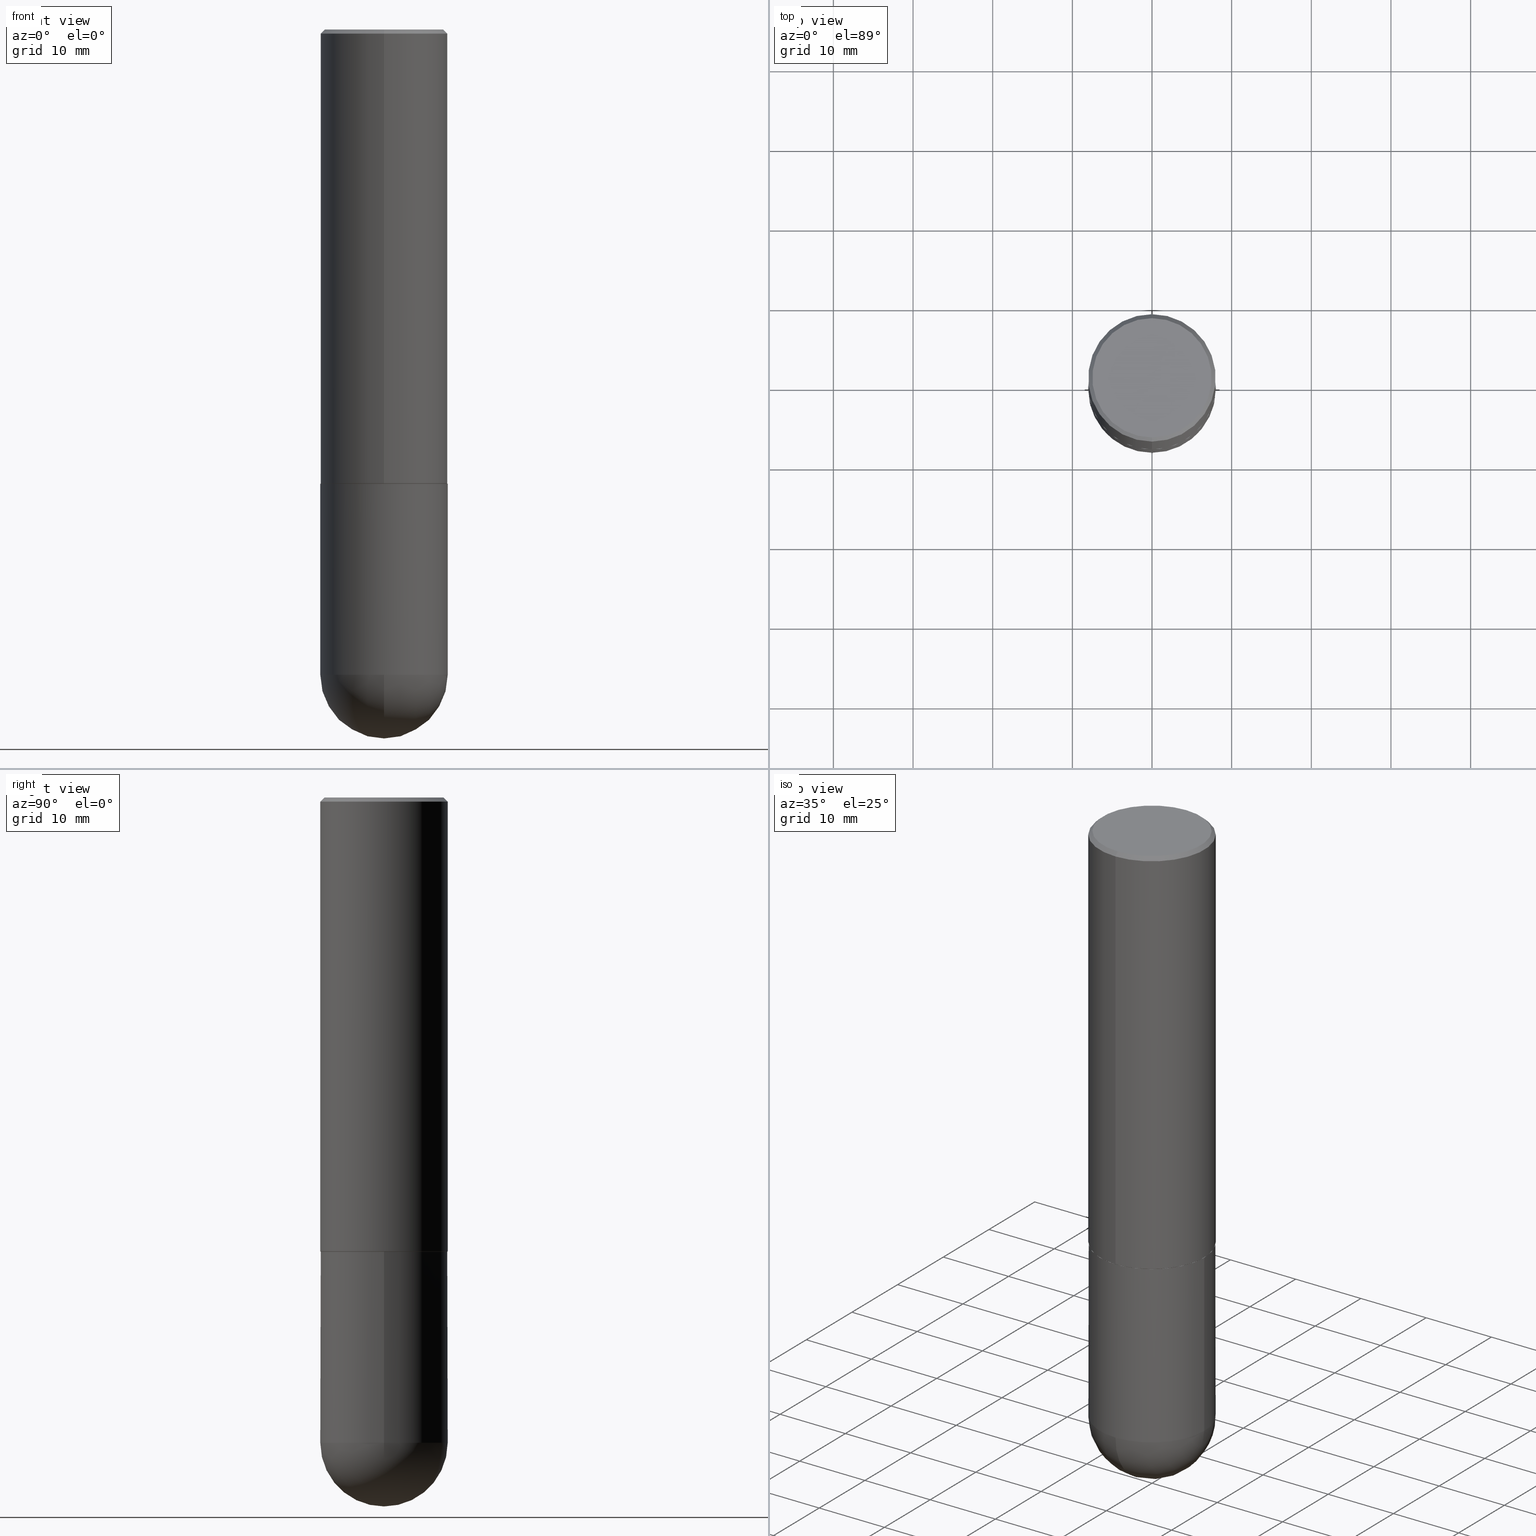
[diagram: canonical four-view strip — front | top / right | iso, engineering-drawing reading convention]
A machine part, canonical four-view strip (front | top / right | iso — engineering-drawing reading convention). The complete STEP part file that produces these views, byte-faithful:
ISO-10303-21;
HEADER;
FILE_DESCRIPTION (( 'STEP AP203' ),
    '1' );
FILE_NAME ('48859.STEP',
    '2024-04-10T12:06:19',
    ( '' ),
    ( '' ),
    'SwSTEP 2.0',
    'SolidWorks 2023',
    '' );
FILE_SCHEMA (( 'CONFIG_CONTROL_DESIGN' ));
ENDSEC;

DATA;
#1 = DIRECTION ( 'NONE',  ( -2.445468806185136877E-29, 3.491481338843145188E-15, 1.000000000000000000 ) ) ;
#2 = PRODUCT_DEFINITION_SHAPE ( 'NONE', 'NONE',  #344 ) ;
#3 = ADVANCED_FACE ( 'NONE', ( #306 ), #31, .T. ) ;
#4 = VECTOR ( 'NONE', #254, 39.37007874015748143 ) ;
#5 = MANIFOLD_SOLID_BREP ( 'Body-Move/Copy2[2]', #282 ) ;
#6 = ORIENTED_EDGE ( 'NONE', *, *, #67, .T. ) ;
#7 = ORIENTED_EDGE ( 'NONE', *, *, #166, .T. ) ;
#8 = APPLICATION_CONTEXT ( 'configuration controlled 3d designs of mechanical parts and assemblies' ) ;
#9 = EDGE_CURVE ( 'NONE', #137, #391, #333, .T. ) ;
#10 = CONICAL_SURFACE ( 'NONE', #407, 0.3139500000000000624, 0.7853981633975165577 ) ;
#11 = AXIS2_PLACEMENT_3D ( 'NONE', #77, #204, #334 ) ;
#12 = EDGE_LOOP ( 'NONE', ( #174, #102, #227, #360 ) ) ;
#13 = CYLINDRICAL_SURFACE ( 'NONE', #11, 0.3149500000000000077 ) ;
#14 = LINE ( 'NONE', #93, #4 ) ;
#15 = EDGE_LOOP ( 'NONE', ( #246, #6, #106, #256 ) ) ;
#16 = LINE ( 'NONE', #339, #396 ) ;
#17 = ADVANCED_FACE ( 'NONE', ( #276 ), #205, .T. ) ;
#18 = CIRCLE ( 'NONE', #379, 0.3149500000000002853 ) ;
#19 = DIRECTION ( 'NONE',  ( -6.982962677686266711E-15, -1.000000000000000000, 3.480615376543096131E-15 ) ) ;
#20 = LOCAL_TIME ( 8, 6, 19.00000000000000000, #370 ) ;
#21 = CARTESIAN_POINT ( 'NONE',  ( 7.798477749484091354E-29, -1.113415941550384898E-14, -3.188949999999999729 ) ) ;
#22 = CARTESIAN_POINT ( 'NONE',  ( 5.485885888258796113E-29, -7.831090478634690748E-15, -2.243099999999999650 ) ) ;
#23 = VERTEX_POINT ( 'NONE', #142 ) ;
#24 = EDGE_LOOP ( 'NONE', ( #85, #226, #255, #154 ) ) ;
#25 = CIRCLE ( 'NONE', #316, 0.3149500000000000077 ) ;
#26 = VECTOR ( 'NONE', #84, 39.37007874015748143 ) ;
#27 = CIRCLE ( 'NONE', #236, 0.2949499999999998234 ) ;
#28 = COORDINATED_UNIVERSAL_TIME_OFFSET ( 5, 0, .BEHIND. ) ;
#29 = CC_DESIGN_PERSON_AND_ORGANIZATION_ASSIGNMENT ( #404, #268, ( #344 ) ) ;
#30 = PERSON_AND_ORGANIZATION ( #179, #217 ) ;
#31 = CONICAL_SURFACE ( 'NONE', #82, 0.3149500000000000077, 0.7853981633974491672 ) ;
#32 = CARTESIAN_POINT ( 'NONE',  ( 7.798477749484091354E-29, -1.113415941550384898E-14, -3.188949999999999729 ) ) ;
#33 = APPLICATION_PROTOCOL_DEFINITION ( 'international standard', 'config_control_design', 1994, #8 ) ;
#34 = FACE_OUTER_BOUND ( 'NONE', #318, .T. ) ;
#35 = DIRECTION ( 'NONE',  ( 1.000000000000000000, 0.000000000000000000, 0.000000000000000000 ) ) ;
#36 = CARTESIAN_POINT ( 'NONE',  ( 7.467357971570205107E-29, -1.160834178364390085E-14, -3.188949999999999729 ) ) ;
#37 = LOCAL_TIME ( 8, 6, 19.00000000000000000, #264 ) ;
#38 = LOCAL_TIME ( 8, 6, 19.00000000000000000, #233 ) ;
#39 = CARTESIAN_POINT ( 'NONE',  ( 5.488331559824155669E-29, -7.834581669610855006E-15, -2.244099999999999540 ) ) ;
#40 = EDGE_LOOP ( 'NONE', ( #50, #7, #328, #74 ) ) ;
#41 = CYLINDRICAL_SURFACE ( 'NONE', #329, 0.3149500000000001743 ) ;
#42 = ORIENTED_EDGE ( 'NONE', *, *, #399, .T. ) ;
#43 = EDGE_CURVE ( 'NONE', #157, #73, #16, .T. ) ;
#44 = DIRECTION ( 'NONE',  ( -6.982962677686266711E-15, -1.000000000000000000, 3.480615376543096131E-15 ) ) ;
#45 = ORIENTED_EDGE ( 'NONE', *, *, #97, .T. ) ;
#46 = CARTESIAN_POINT ( 'NONE',  ( -2.092108864420427637E-15, -0.2949499999999998234, 1.119279898239787579E-15 ) ) ;
#47 = AXIS2_PLACEMENT_3D ( 'NONE', #22, #369, #57 ) ;
#48 = PERSON_AND_ORGANIZATION_ROLE ( 'design_supplier' ) ;
#49 = CARTESIAN_POINT ( 'NONE',  ( 7.798477749484091354E-29, -1.113415941550384898E-14, -3.188949999999999729 ) ) ;
#50 = ORIENTED_EDGE ( 'NONE', *, *, #375, .F. ) ;
#51 = ADVANCED_FACE ( 'NONE', ( #169 ), #240, .F. ) ;
#52 = PERSON_AND_ORGANIZATION ( #179, #217 ) ;
#53 = FACE_OUTER_BOUND ( 'NONE', #287, .T. ) ;
#54 = DIRECTION ( 'NONE',  ( 1.000000000000000000, -6.982962677686263555E-15, 0.000000000000000000 ) ) ;
#55 = CARTESIAN_POINT ( 'NONE',  ( 5.485885888258796113E-29, -7.831090478634690748E-15, -2.243099999999999650 ) ) ;
#56 = EDGE_CURVE ( 'NONE', #278, #137, #269, .T. ) ;
#57 = DIRECTION ( 'NONE',  ( -6.982962677686265922E-15, -1.000000000000000000, 3.469564049740290009E-15 ) ) ;
#58 = VERTEX_POINT ( 'NONE', #397 ) ;
#59 = DATE_AND_TIME ( #181, #208 ) ;
#60 = VECTOR ( 'NONE', #86, 39.37007874015748143 ) ;
#61 = CC_DESIGN_SECURITY_CLASSIFICATION ( #190, ( #123 ) ) ;
#62 = DIRECTION ( 'NONE',  ( 1.000000000000000000, -6.982962677686263555E-15, 0.000000000000000000 ) ) ;
#63 = ADVANCED_FACE ( 'NONE', ( #140 ), #403, .F. ) ;
#64 = LENGTH_MEASURE_WITH_UNIT ( LENGTH_MEASURE( 0.02539999999999999897 ), #220 );
#65 = DIRECTION ( 'NONE',  ( 2.438088387897960049E-29, -3.491481338843145188E-15, -1.000000000000000000 ) ) ;
#66 = AXIS2_PLACEMENT_3D ( 'NONE', #21, #332, #270 ) ;
#67 = EDGE_CURVE ( 'NONE', #206, #394, #158, .T. ) ;
#68 = DIRECTION ( 'NONE',  ( -2.445671565359902220E-29, 3.491190976164545714E-15, 1.000000000000000000 ) ) ;
#69 = ORIENTED_EDGE ( 'NONE', *, *, #310, .T. ) ;
#70 = CARTESIAN_POINT ( 'NONE',  ( -0.3149500000000000077, 2.237854346276435590E-15, -1.549218606675782676E-29 ) ) ;
#71 = ORIENTED_EDGE ( 'NONE', *, *, #353, .F. ) ;
#72 = EDGE_CURVE ( 'NONE', #358, #23, #25, .T. ) ;
#73 = VERTEX_POINT ( 'NONE', #78 ) ;
#74 = ORIENTED_EDGE ( 'NONE', *, *, #291, .F. ) ;
#75 = CIRCLE ( 'NONE', #309, 0.3149500000000000077 ) ;
#76 = ORIENTED_EDGE ( 'NONE', *, *, #194, .T. ) ;
#77 = CARTESIAN_POINT ( 'NONE',  ( 0.000000000000000000, 0.000000000000000000, 0.000000000000000000 ) ) ;
#78 = CARTESIAN_POINT ( 'NONE',  ( -2.160713844398143363E-15, -0.3149500000000000632, -0.01999999999999896999 ) ) ;
#79 = ORIENTED_EDGE ( 'NONE', *, *, #56, .F. ) ;
#80 = CC_DESIGN_DATE_AND_TIME_ASSIGNMENT ( #211, #366, ( #344 ) ) ;
#81 = DATE_AND_TIME ( #201, #38 ) ;
#82 = AXIS2_PLACEMENT_3D ( 'NONE', #400, #121, #245 ) ;
#83 = EDGE_LOOP ( 'NONE', ( #79, #308 ) ) ;
#84 = DIRECTION ( 'NONE',  ( -4.851104656540968219E-15, -0.7071067811865505703, -0.7071067811865444641 ) ) ;
#85 = ORIENTED_EDGE ( 'NONE', *, *, #166, .F. ) ;
#86 = DIRECTION ( 'NONE',  ( -2.445671565359902220E-29, 3.491190976164546108E-15, 1.000000000000000000 ) ) ;
#87 = DIRECTION ( 'NONE',  ( 1.000000000000000000, -6.982962677686265922E-15, 4.883557194083112340E-29 ) ) ;
#88 = ADVANCED_FACE ( 'NONE', ( #53 ), #10, .T. ) ;
#89 = AXIS2_PLACEMENT_3D ( 'NONE', #307, #184, #35 ) ;
#90 = EDGE_CURVE ( 'NONE', #391, #157, #18, .T. ) ;
#91 = DIRECTION ( 'NONE',  ( -6.982962677686265922E-15, -1.000000000000000000, 3.496670018878889100E-15 ) ) ;
#92 = CYLINDRICAL_SURFACE ( 'NONE', #390, 0.3149500000000001743 ) ;
#93 = CARTESIAN_POINT ( 'NONE',  ( -2.192301132659549031E-15, -0.3139500000000079449, -2.244099999999998651 ) ) ;
#94 = DIRECTION ( 'NONE',  ( 4.937700262164551986E-15, 0.7071067811865456854, -0.7071067811865493491 ) ) ;
#95 = ORIENTED_EDGE ( 'NONE', *, *, #124, .T. ) ;
#96 = LINE ( 'NONE', #321, #133 ) ;
#97 = EDGE_CURVE ( 'NONE', #157, #391, #243, .T. ) ;
#98 = DIRECTION ( 'NONE',  ( -6.982962677686265922E-15, -1.000000000000000000, 3.491190976164545714E-15 ) ) ;
#99 = VERTEX_POINT ( 'NONE', #258 ) ;
#100 = CIRCLE ( 'NONE', #408, 0.2949499999999998234 ) ;
#101 = DIRECTION ( 'NONE',  ( -2.445468806185136877E-29, 3.491481338843145188E-15, 1.000000000000000000 ) ) ;
#102 = ORIENTED_EDGE ( 'NONE', *, *, #186, .T. ) ;
#103 = ORIENTED_EDGE ( 'NONE', *, *, #182, .T. ) ;
#104 = APPROVAL ( #346, 'UNSPECIFIED' ) ;
#105 = CARTESIAN_POINT ( 'NONE',  ( 7.467357971570205107E-29, -1.160834178364390085E-14, -3.188949999999999729 ) ) ;
#106 = ORIENTED_EDGE ( 'NONE', *, *, #337, .F. ) ;
#107 = PERSON_AND_ORGANIZATION ( #179, #217 ) ;
#108 = ADVANCED_FACE ( 'NONE', ( #273 ), #347, .F. ) ;
#109 = DIRECTION ( 'NONE',  ( -2.445468806185136597E-29, 3.491481338843145583E-15, 1.000000000000000000 ) ) ;
#110 = DIRECTION ( 'NONE',  ( -6.982962677686266711E-15, -1.000000000000000000, 3.480615376543096131E-15 ) ) ;
#111 = ORIENTED_EDGE ( 'NONE', *, *, #353, .T. ) ;
#112 = DIRECTION ( 'NONE',  ( -6.982962677686265922E-15, -1.000000000000000000, 3.491190976164545714E-15 ) ) ;
#113 = DIRECTION ( 'NONE',  ( 2.445671565359901659E-29, -3.491190976164546108E-15, -1.000000000000000000 ) ) ;
#114 = ADVANCED_FACE ( 'NONE', ( #212 ), #92, .T. ) ;
#115 = EDGE_CURVE ( 'NONE', #345, #358, #250, .T. ) ;
#116 = CYLINDRICAL_SURFACE ( 'NONE', #294, 0.3149500000000000077 ) ;
#117 = APPROVAL_STATUS ( 'not_yet_approved' ) ;
#118 = DIRECTION ( 'NONE',  ( 6.982962677686264344E-15, 1.000000000000000000, 0.000000000000000000 ) ) ;
#119 = CONICAL_SURFACE ( 'NONE', #313, 0.3139500000000000624, 0.7853981633975165577 ) ;
#120 = CARTESIAN_POINT ( 'NONE',  ( 2.237854346276435985E-15, 0.3149500000000001743, -1.099550597943024265E-15 ) ) ;
#121 = DIRECTION ( 'NONE',  ( 2.445671565359902220E-29, -3.491190976164545714E-15, -1.000000000000000000 ) ) ;
#122 = SHAPE_DEFINITION_REPRESENTATION ( #2, #350 ) ;
#123 = PRODUCT_DEFINITION_FORMATION_WITH_SPECIFIED_SOURCE ( 'ANY', '', #125, .NOT_KNOWN. ) ;
#124 = EDGE_CURVE ( 'NONE', #391, #99, #314, .T. ) ;
#125 = PRODUCT ( '48859', '48859', '', ( #284 ) ) ;
#126 = CARTESIAN_POINT ( 'NONE',  ( 0.000000000000000000, 0.000000000000000000, 0.000000000000000000 ) ) ;
#127 = AXIS2_PLACEMENT_3D ( 'NONE', #105, #234, #395 ) ;
#128 = EDGE_LOOP ( 'NONE', ( #263, #192, #272, #151 ) ) ;
#129 = EDGE_LOOP ( 'NONE', ( #289, #343, #235, #296 ) ) ;
#130 = CARTESIAN_POINT ( 'NONE',  ( -2.192301132659549031E-15, -0.3139500000000079449, -2.244099999999998651 ) ) ;
#131 = ORIENTED_EDGE ( 'NONE', *, *, #56, .T. ) ;
#132 = AXIS2_PLACEMENT_3D ( 'NONE', #213, #367, #377 ) ;
#133 = VECTOR ( 'NONE', #94, 39.37007874015748143 ) ;
#134 = CARTESIAN_POINT ( 'NONE',  ( 5.488331559824155669E-29, -7.834581669610855006E-15, -2.244099999999999540 ) ) ;
#135 = ORIENTED_EDGE ( 'NONE', *, *, #9, .T. ) ;
#136 = DIRECTION ( 'NONE',  ( -2.445671565359902220E-29, 3.491190976164545714E-15, 1.000000000000000000 ) ) ;
#137 = VERTEX_POINT ( 'NONE', #305 ) ;
#138 = DIRECTION ( 'NONE',  ( -2.445671565359902220E-29, 3.491190976164546108E-15, 1.000000000000000000 ) ) ;
#139 = CIRCLE ( 'NONE', #380, 0.3149500000000000077 ) ;
#140 = FACE_OUTER_BOUND ( 'NONE', #262, .T. ) ;
#141 = CARTESIAN_POINT ( 'NONE',  ( 0.3149500000000000077, -1.168398043933816632E-14, -3.188949999999999729 ) ) ;
#142 = CARTESIAN_POINT ( 'NONE',  ( -0.3149500000000000077, -7.246841997724440463E-15, -2.244099999999999540 ) ) ;
#143 = DIRECTION ( 'NONE',  ( -2.445468806185136597E-29, 3.491481338843145583E-15, 1.000000000000000000 ) ) ;
#144 = CARTESIAN_POINT ( 'NONE',  ( 2.230748918918889408E-15, 0.3139499999999922353, -2.244100000000000872 ) ) ;
#145 = CIRCLE ( 'NONE', #372, 0.3149500000000000077 ) ;
#146 = CALENDAR_DATE ( 2024, 10, 4 ) ;
#147 = ADVANCED_FACE ( 'NONE', ( #34 ), #116, .T. ) ;
#148 = CARTESIAN_POINT ( 'NONE',  ( 0.000000000000000000, 0.000000000000000000, 0.000000000000000000 ) ) ;
#149 = CARTESIAN_POINT ( 'NONE',  ( 0.000000000000000000, 0.000000000000000000, 0.000000000000000000 ) ) ;
#150 = DIRECTION ( 'NONE',  ( -2.445671565359902220E-29, 3.491190976164545714E-15, 1.000000000000000000 ) ) ;
#151 = ORIENTED_EDGE ( 'NONE', *, *, #310, .F. ) ;
#152 = ORIENTED_EDGE ( 'NONE', *, *, #375, .T. ) ;
#153 = DIRECTION ( 'NONE',  ( -6.982962677686264344E-15, -1.000000000000000000, 3.491190976164545714E-15 ) ) ;
#154 = ORIENTED_EDGE ( 'NONE', *, *, #196, .T. ) ;
#155 = DIRECTION ( 'NONE',  ( -2.445468806185136597E-29, 3.491481338843145583E-15, 1.000000000000000000 ) ) ;
#156 = LINE ( 'NONE', #70, #253 ) ;
#157 = VERTEX_POINT ( 'NONE', #277 ) ;
#158 = CIRCLE ( 'NONE', #371, 0.3149500000000001743 ) ;
#159 = DATE_AND_TIME ( #401, #37 ) ;
#160 = PERSON_AND_ORGANIZATION_ROLE ( 'creator' ) ;
#161 = CARTESIAN_POINT ( 'NONE',  ( 0.3149500000000000077, -1.003451736783519063E-14, -2.244099999999999540 ) ) ;
#162 = CARTESIAN_POINT ( 'NONE',  ( 5.487876547960064752E-29, -7.835233272497900762E-15, -2.244099999999999540 ) ) ;
#163 = APPROVAL_ROLE ( '' ) ;
#164 = CARTESIAN_POINT ( 'NONE',  ( -0.3149500000000000077, -7.246841997724442041E-15, -3.188949999999999729 ) ) ;
#165 = CARTESIAN_POINT ( 'NONE',  ( 5.488331559824155669E-29, -7.834581669610855006E-15, -2.244099999999999540 ) ) ;
#166 = EDGE_CURVE ( 'NONE', #362, #73, #405, .T. ) ;
#167 = AXIS2_PLACEMENT_3D ( 'NONE', #406, #113, #335 ) ;
#168 = AXIS2_PLACEMENT_3D ( 'NONE', #134, #228, #288 ) ;
#169 = FACE_OUTER_BOUND ( 'NONE', #83, .T. ) ;
#170 = APPROVAL_STATUS ( 'not_yet_approved' ) ;
#171 = DIRECTION ( 'NONE',  ( -6.982962677686264344E-15, -1.000000000000000000, 3.491190976164545714E-15 ) ) ;
#172 = ORIENTED_EDGE ( 'NONE', *, *, #43, .F. ) ;
#173 = CARTESIAN_POINT ( 'NONE',  ( 4.891343130719822166E-31, -6.982381952329116622E-17, -0.02000000000000007327 ) ) ;
#174 = ORIENTED_EDGE ( 'NONE', *, *, #9, .F. ) ;
#175 = DIRECTION ( 'NONE',  ( -2.445671565359902220E-29, 3.491190976164545714E-15, 1.000000000000000000 ) ) ;
#176 = APPLICATION_PROTOCOL_DEFINITION ( 'international standard', 'config_control_design', 1994, #193 ) ;
#177 = ADVANCED_FACE ( 'NONE', ( #341 ), #283, .T. ) ;
#178 = DATE_TIME_ROLE ( 'classification_date' ) ;
#179 = PERSON ( 'UNSPECIFIED', 'UNSPECIFIED', 'UNSPECIFIED', ('UNSPECIFIED'), ('UNSPECIFIED'), ('UNSPECIFIED') ) ;
#180 =( NAMED_UNIT ( * ) PLANE_ANGLE_UNIT ( ) SI_UNIT ( $, .RADIAN. ) );
#181 = CALENDAR_DATE ( 2024, 10, 4 ) ;
#182 = EDGE_CURVE ( 'NONE', #331, #23, #156, .T. ) ;
#183 = CARTESIAN_POINT ( 'NONE',  ( 4.891343130719822166E-31, -6.982381952329116622E-17, -0.02000000000000007327 ) ) ;
#184 = DIRECTION ( 'NONE',  ( 0.000000000000000000, 0.000000000000000000, 1.000000000000000000 ) ) ;
#185 = CIRCLE ( 'NONE', #303, 0.3149500000000001743 ) ;
#186 = EDGE_CURVE ( 'NONE', #137, #278, #197, .T. ) ;
#187 = FACE_OUTER_BOUND ( 'NONE', #12, .T. ) ;
#188 = ORIENTED_EDGE ( 'NONE', *, *, #72, .F. ) ;
#189 = APPROVAL_PERSON_ORGANIZATION ( #52, #224, #163 ) ;
#190 = SECURITY_CLASSIFICATION ( '', '', #218 ) ;
#191 = FACE_OUTER_BOUND ( 'NONE', #129, .T. ) ;
#192 = ORIENTED_EDGE ( 'NONE', *, *, #275, .T. ) ;
#193 = APPLICATION_CONTEXT ( 'configuration controlled 3d designs of mechanical parts and assemblies' ) ;
#194 = EDGE_CURVE ( 'NONE', #229, #362, #100, .T. ) ;
#195 = DIRECTION ( 'NONE',  ( -2.445671565359902220E-29, 3.491190976164545714E-15, 1.000000000000000000 ) ) ;
#196 = EDGE_CURVE ( 'NONE', #99, #73, #207, .T. ) ;
#197 = CIRCLE ( 'NONE', #168, 0.3139500000000000624 ) ;
#198 = AXIS2_PLACEMENT_3D ( 'NONE', #49, #155, #54 ) ;
#199 = FACE_OUTER_BOUND ( 'NONE', #232, .T. ) ;
#200 = ORIENTED_EDGE ( 'NONE', *, *, #97, .F. ) ;
#201 = CALENDAR_DATE ( 2024, 10, 4 ) ;
#202 = ORIENTED_EDGE ( 'NONE', *, *, #182, .F. ) ;
#203 = APPROVAL_ROLE ( '' ) ;
#204 = DIRECTION ( 'NONE',  ( -2.445468806185136597E-29, 3.491481338843145583E-15, 1.000000000000000000 ) ) ;
#205 = SPHERICAL_SURFACE ( 'NONE', #312, 0.3149500000000001743 ) ;
#206 = VERTEX_POINT ( 'NONE', #356 ) ;
#207 = CIRCLE ( 'NONE', #338, 0.3149500000000000077 ) ;
#208 = LOCAL_TIME ( 8, 6, 19.00000000000000000, #410 ) ;
#209 = CARTESIAN_POINT ( 'NONE',  ( 2.129454468560426573E-15, 0.2949499999999998234, -9.401736585996766211E-16 ) ) ;
#210 = DIRECTION ( 'NONE',  ( 6.982962677686265133E-15, 1.000000000000000000, -3.469564049740291586E-15 ) ) ;
#211 = DATE_AND_TIME ( #340, #20 ) ;
#212 = FACE_OUTER_BOUND ( 'NONE', #261, .T. ) ;
#213 = CARTESIAN_POINT ( 'NONE',  ( 5.488331559824155669E-29, -7.834581669610855006E-15, -2.244099999999999540 ) ) ;
#214 = PERSON_AND_ORGANIZATION_ROLE ( 'classification_officer' ) ;
#215 = ADVANCED_FACE ( 'NONE', ( #187 ), #119, .T. ) ;
#216 = CARTESIAN_POINT ( 'NONE',  ( 5.488331559824155669E-29, -7.834581669610855006E-15, -2.244099999999999540 ) ) ;
#217 = ORGANIZATION ( 'UNSPECIFIED', 'UNSPECIFIED', '' ) ;
#218 = SECURITY_CLASSIFICATION_LEVEL ( 'unclassified' ) ;
#219 = PRODUCT_RELATED_PRODUCT_CATEGORY ( 'detail', '', ( #125 ) ) ;
#220 =( LENGTH_UNIT ( ) NAMED_UNIT ( * ) SI_UNIT ( $, .METRE. ) );
#221 = PERSON_AND_ORGANIZATION_ROLE ( 'design_owner' ) ;
#222 = VECTOR ( 'NONE', #409, 39.37007874015748143 ) ;
#223 = VECTOR ( 'NONE', #1, 39.37007874015748143 ) ;
#224 = APPROVAL ( #170, 'UNSPECIFIED' ) ;
#225 = CARTESIAN_POINT ( 'NONE',  ( -2.190175187331782360E-45, 3.126470438031604154E-31, 8.955311982005558999E-17 ) ) ;
#226 = ORIENTED_EDGE ( 'NONE', *, *, #194, .F. ) ;
#227 = ORIENTED_EDGE ( 'NONE', *, *, #260, .T. ) ;
#228 = DIRECTION ( 'NONE',  ( -2.445671565359902220E-29, 3.491190976164545714E-15, 1.000000000000000000 ) ) ;
#229 = VERTEX_POINT ( 'NONE', #209 ) ;
#230 = CC_DESIGN_APPROVAL ( #251, ( #123 ) ) ;
#231 = DIRECTION ( 'NONE',  ( -6.982962677686265922E-15, -1.000000000000000000, 3.496670018878889100E-15 ) ) ;
#232 = EDGE_LOOP ( 'NONE', ( #69, #103, #188, #355, #387 ) ) ;
#233 = COORDINATED_UNIVERSAL_TIME_OFFSET ( 5, 0, .BEHIND. ) ;
#234 = DIRECTION ( 'NONE',  ( -1.000000000000000000, 6.982962677686265133E-15, -4.883557194083112901E-29 ) ) ;
#235 = ORIENTED_EDGE ( 'NONE', *, *, #43, .T. ) ;
#236 = AXIS2_PLACEMENT_3D ( 'NONE', #274, #136, #112 ) ;
#237 = APPROVAL_PERSON_ORGANIZATION ( #30, #104, #247 ) ;
#238 = CARTESIAN_POINT ( 'NONE',  ( 2.237854346276464384E-15, 0.3149499999999924027, -2.243100000000000538 ) ) ;
#239 = DIRECTION ( 'NONE',  ( 1.000000000000000000, -6.982962677686266711E-15, 0.000000000000000000 ) ) ;
#240 = PLANE ( 'NONE',  #132 ) ;
#241 = DIRECTION ( 'NONE',  ( -2.445671565359902220E-29, 3.491190976164545714E-15, 1.000000000000000000 ) ) ;
#242 = CARTESIAN_POINT ( 'NONE',  ( -2.160713844398143363E-15, -0.3149500000000000632, -0.01999999999999896999 ) ) ;
#243 = CIRCLE ( 'NONE', #47, 0.3149500000000002853 ) ;
#244 = CIRCLE ( 'NONE', #66, 0.3149500000000000077 ) ;
#245 = DIRECTION ( 'NONE',  ( 6.982962677686265922E-15, 1.000000000000000000, -3.496670018878889100E-15 ) ) ;
#246 = ORIENTED_EDGE ( 'NONE', *, *, #275, .F. ) ;
#247 = APPROVAL_ROLE ( '' ) ;
#248 = DATE_AND_TIME ( #146, #364 ) ;
#249 = CC_DESIGN_PERSON_AND_ORGANIZATION_ASSIGNMENT ( #324, #160, ( #123 ) ) ;
#250 = LINE ( 'NONE', #348, #223 ) ;
#251 = APPROVAL ( #117, 'UNSPECIFIED' ) ;
#252 = AXIS2_PLACEMENT_3D ( 'NONE', #216, #241, #110 ) ;
#253 = VECTOR ( 'NONE', #101, 39.37007874015748143 ) ;
#254 = DIRECTION ( 'NONE',  ( -4.937700262164884886E-15, -0.7071067811865933139, 0.7071067811865017205 ) ) ;
#255 = ORIENTED_EDGE ( 'NONE', *, *, #291, .T. ) ;
#256 = ORIENTED_EDGE ( 'NONE', *, *, #399, .F. ) ;
#257 = DIRECTION ( 'NONE',  ( -7.105427357600999492E-15, -1.000000000000000000, 0.000000000000000000 ) ) ;
#258 = CARTESIAN_POINT ( 'NONE',  ( 2.199284095337289871E-15, 0.3149499999999999522, -0.02000000000000117309 ) ) ;
#259 = ORIENTED_EDGE ( 'NONE', *, *, #326, .T. ) ;
#260 = EDGE_CURVE ( 'NONE', #278, #157, #14, .T. ) ;
#261 = EDGE_LOOP ( 'NONE', ( #45, #95, #389, #172 ) ) ;
#262 = EDGE_LOOP ( 'NONE', ( #76, #152 ) ) ;
#263 = ORIENTED_EDGE ( 'NONE', *, *, #67, .F. ) ;
#264 = COORDINATED_UNIVERSAL_TIME_OFFSET ( 5, 0, .BEHIND. ) ;
#265 = CC_DESIGN_PERSON_AND_ORGANIZATION_ASSIGNMENT ( #330, #48, ( #123 ) ) ;
#266 = SPHERICAL_SURFACE ( 'NONE', #127, 0.3149500000000001743 ) ;
#267 = DIRECTION ( 'NONE',  ( -1.000000000000000000, 6.982962677686265133E-15, -4.883557194083112901E-29 ) ) ;
#268 = PERSON_AND_ORGANIZATION_ROLE ( 'creator' ) ;
#269 = CIRCLE ( 'NONE', #252, 0.3139500000000000624 ) ;
#270 = DIRECTION ( 'NONE',  ( 1.000000000000000000, -6.982962677686263555E-15, 0.000000000000000000 ) ) ;
#271 = DIRECTION ( 'NONE',  ( -2.445671565359902220E-29, 3.491190976164545714E-15, 1.000000000000000000 ) ) ;
#272 = ORIENTED_EDGE ( 'NONE', *, *, #326, .F. ) ;
#273 = FACE_OUTER_BOUND ( 'NONE', #352, .T. ) ;
#274 = CARTESIAN_POINT ( 'NONE',  ( -2.190175187331782360E-45, 3.126470438031604154E-31, 8.955311982005558999E-17 ) ) ;
#275 = EDGE_CURVE ( 'NONE', #206, #58, #185, .T. ) ;
#276 = FACE_OUTER_BOUND ( 'NONE', #15, .T. ) ;
#277 = CARTESIAN_POINT ( 'NONE',  ( -2.199284095337236228E-15, -0.3149500000000081124, -2.243099999999998317 ) ) ;
#278 = VERTEX_POINT ( 'NONE', #130 ) ;
#279 = DIRECTION ( 'NONE',  ( -1.000000000000000000, 6.982962677686265922E-15, -4.876176775795935793E-29 ) ) ;
#280 = ORIENTED_EDGE ( 'NONE', *, *, #115, .T. ) ;
#281 = DIRECTION ( 'NONE',  ( -2.445468806185136597E-29, 3.491481338843145583E-15, 1.000000000000000000 ) ) ;
#282 = CLOSED_SHELL ( 'NONE', ( #88, #114, #3, #177, #297, #215, #51, #63 ) ) ;
#283 = CONICAL_SURFACE ( 'NONE', #349, 0.3149500000000000077, 0.7853981633974491672 ) ;
#284 = MECHANICAL_CONTEXT ( 'NONE', #8, 'mechanical' ) ;
#285 = DIRECTION ( 'NONE',  ( -1.000000000000000000, 7.105427357601001070E-15, -4.926315508542082329E-29 ) ) ;
#286 = AXIS2_PLACEMENT_3D ( 'NONE', #183, #383, #91 ) ;
#287 = EDGE_LOOP ( 'NONE', ( #131, #135, #200, #322 ) ) ;
#288 = DIRECTION ( 'NONE',  ( -6.982962677686266711E-15, -1.000000000000000000, 3.480615376543096131E-15 ) ) ;
#289 = ORIENTED_EDGE ( 'NONE', *, *, #124, .F. ) ;
#290 = MANIFOLD_SOLID_BREP ( 'Body-Move/Copy2[1]', #336 ) ;
#291 = EDGE_CURVE ( 'NONE', #229, #99, #96, .T. ) ;
#292 = ORIENTED_EDGE ( 'NONE', *, *, #72, .T. ) ;
#293 = CARTESIAN_POINT ( 'NONE',  ( 4.891343130719822166E-31, -6.982381952329116622E-17, -0.02000000000000007327 ) ) ;
#294 = AXIS2_PLACEMENT_3D ( 'NONE', #148, #143, #384 ) ;
#295 = FACE_OUTER_BOUND ( 'NONE', #128, .T. ) ;
#296 = ORIENTED_EDGE ( 'NONE', *, *, #196, .F. ) ;
#297 = ADVANCED_FACE ( 'NONE', ( #191 ), #41, .T. ) ;
#298 = APPROVAL_DATE_TIME ( #159, #224 ) ;
#299 = DIRECTION ( 'NONE',  ( -2.445468806185136597E-29, 3.491481338843145583E-15, 1.000000000000000000 ) ) ;
#300 = APPROVAL_DATE_TIME ( #81, #251 ) ;
#301 = CARTESIAN_POINT ( 'NONE',  ( 2.199284095337366390E-15, 0.3149499999999886835, -3.188950000000001062 ) ) ;
#302 = DIRECTION ( 'NONE',  ( -2.445671565359902220E-29, 3.491190976164545714E-15, 1.000000000000000000 ) ) ;
#303 = AXIS2_PLACEMENT_3D ( 'NONE', #36, #285, #257 ) ;
#304 = DIRECTION ( 'NONE',  ( -6.982962677686265922E-15, -1.000000000000000000, 3.469564049740290009E-15 ) ) ;
#305 = CARTESIAN_POINT ( 'NONE',  ( 2.234301632597690701E-15, 0.3139499999999922353, -2.244100000000000872 ) ) ;
#306 = FACE_OUTER_BOUND ( 'NONE', #40, .T. ) ;
#307 = CARTESIAN_POINT ( 'NONE',  ( 0.000000000000000000, 0.000000000000000000, 0.000000000000000000 ) ) ;
#308 = ORIENTED_EDGE ( 'NONE', *, *, #186, .F. ) ;
#309 = AXIS2_PLACEMENT_3D ( 'NONE', #382, #281, #62 ) ;
#310 = EDGE_CURVE ( 'NONE', #394, #331, #145, .T. ) ;
#311 = CC_DESIGN_DATE_AND_TIME_ASSIGNMENT ( #59, #178, ( #190 ) ) ;
#312 = AXIS2_PLACEMENT_3D ( 'NONE', #365, #267, #210 ) ;
#313 = AXIS2_PLACEMENT_3D ( 'NONE', #39, #195, #44 ) ;
#314 = LINE ( 'NONE', #120, #60 ) ;
#315 = DESIGN_CONTEXT ( 'detailed design', #193, 'design' ) ;
#316 = AXIS2_PLACEMENT_3D ( 'NONE', #162, #299, #239 ) ;
#317 = CC_DESIGN_APPROVAL ( #224, ( #344 ) ) ;
#318 = EDGE_LOOP ( 'NONE', ( #202, #259, #42, #280, #71 ) ) ;
#319 = CC_DESIGN_APPROVAL ( #104, ( #190 ) ) ;
#320 = ADVANCED_FACE ( 'NONE', ( #199 ), #13, .T. ) ;
#321 = CARTESIAN_POINT ( 'NONE',  ( 2.199284095337289871E-15, 0.3149499999999999522, -0.02000000000000117309 ) ) ;
#322 = ORIENTED_EDGE ( 'NONE', *, *, #260, .F. ) ;
#323 = DIRECTION ( 'NONE',  ( -2.445468806185136597E-29, 3.491481338843145583E-15, 1.000000000000000000 ) ) ;
#324 = PERSON_AND_ORGANIZATION ( #179, #217 ) ;
#325 = CARTESIAN_POINT ( 'NONE',  ( 5.487876547960064752E-29, -7.835233272497900762E-15, -2.244099999999999540 ) ) ;
#326 = EDGE_CURVE ( 'NONE', #331, #58, #244, .T. ) ;
#327 = DIRECTION ( 'NONE',  ( 6.982962677686265922E-15, 1.000000000000000000, -3.496670018878889100E-15 ) ) ;
#328 = ORIENTED_EDGE ( 'NONE', *, *, #412, .T. ) ;
#329 = AXIS2_PLACEMENT_3D ( 'NONE', #149, #150, #153 ) ;
#330 = PERSON_AND_ORGANIZATION ( #179, #217 ) ;
#331 = VERTEX_POINT ( 'NONE', #164 ) ;
#332 = DIRECTION ( 'NONE',  ( -2.445468806185136597E-29, 3.491481338843145583E-15, 1.000000000000000000 ) ) ;
#333 = LINE ( 'NONE', #144, #222 ) ;
#334 = DIRECTION ( 'NONE',  ( 1.000000000000000000, -6.982962677686266711E-15, 4.876176775795936353E-29 ) ) ;
#335 = DIRECTION ( 'NONE',  ( 6.982962677686265922E-15, 1.000000000000000000, -3.491190976164546108E-15 ) ) ;
#336 = CLOSED_SHELL ( 'NONE', ( #320, #386, #17, #108, #147 ) ) ;
#337 = EDGE_CURVE ( 'NONE', #345, #394, #385, .T. ) ;
#338 = AXIS2_PLACEMENT_3D ( 'NONE', #293, #68, #231 ) ;
#339 = CARTESIAN_POINT ( 'NONE',  ( -2.199284095337290265E-15, -0.3149500000000001743, 1.099550597943024265E-15 ) ) ;
#340 = CALENDAR_DATE ( 2024, 10, 4 ) ;
#341 = FACE_OUTER_BOUND ( 'NONE', #24, .T. ) ;
#342 =( NAMED_UNIT ( * ) SI_UNIT ( $, .STERADIAN. ) SOLID_ANGLE_UNIT ( ) );
#343 = ORIENTED_EDGE ( 'NONE', *, *, #90, .T. ) ;
#344 = PRODUCT_DEFINITION ( 'UNKNOWN', '', #123, #315 ) ;
#345 = VERTEX_POINT ( 'NONE', #141 ) ;
#346 = APPROVAL_STATUS ( 'not_yet_approved' ) ;
#347 = PLANE ( 'NONE',  #411 ) ;
#348 = CARTESIAN_POINT ( 'NONE',  ( 0.3149500000000000077, -2.199284095337289871E-15, 1.535751875536930130E-29 ) ) ;
#349 = AXIS2_PLACEMENT_3D ( 'NONE', #173, #351, #327 ) ;
#350 = ADVANCED_BREP_SHAPE_REPRESENTATION ( '48859', ( #290, #5, #89 ), #398 ) ;
#351 = DIRECTION ( 'NONE',  ( 2.445671565359902220E-29, -3.491190976164545714E-15, -1.000000000000000000 ) ) ;
#352 = EDGE_LOOP ( 'NONE', ( #292, #111 ) ) ;
#353 = EDGE_CURVE ( 'NONE', #23, #358, #139, .T. ) ;
#354 = APPROVAL_PERSON_ORGANIZATION ( #393, #251, #203 ) ;
#355 = ORIENTED_EDGE ( 'NONE', *, *, #115, .F. ) ;
#356 = CARTESIAN_POINT ( 'NONE',  ( 8.251025103217066053E-29, -1.268869870584297589E-14, -3.503899999999999793 ) ) ;
#357 = DIMENSIONAL_EXPONENTS ( 1.000000000000000000, 0.000000000000000000, 0.000000000000000000, 0.000000000000000000, 0.000000000000000000, 0.000000000000000000, 0.000000000000000000 ) ;
#358 = VERTEX_POINT ( 'NONE', #161 ) ;
#359 = DIRECTION ( 'NONE',  ( 1.000000000000000000, -6.982962677686266711E-15, 0.000000000000000000 ) ) ;
#360 = ORIENTED_EDGE ( 'NONE', *, *, #90, .F. ) ;
#361 = DIRECTION ( 'NONE',  ( 1.000000000000000000, -6.982962677686263555E-15, 0.000000000000000000 ) ) ;
#362 = VERTEX_POINT ( 'NONE', #46 ) ;
#363 = CIRCLE ( 'NONE', #286, 0.3149500000000000077 ) ;
#364 = LOCAL_TIME ( 8, 6, 19.00000000000000000, #28 ) ;
#365 = CARTESIAN_POINT ( 'NONE',  ( 7.467357971570205107E-29, -1.160834178364390085E-14, -3.188949999999999729 ) ) ;
#366 = DATE_TIME_ROLE ( 'creation_date' ) ;
#367 = DIRECTION ( 'NONE',  ( -2.445671565359901659E-29, 3.491190976164546108E-15, 1.000000000000000000 ) ) ;
#368 = CC_DESIGN_PERSON_AND_ORGANIZATION_ASSIGNMENT ( #376, #214, ( #190 ) ) ;
#369 = DIRECTION ( 'NONE',  ( -2.445671565359902220E-29, 3.491190976164545714E-15, 1.000000000000000000 ) ) ;
#370 = COORDINATED_UNIVERSAL_TIME_OFFSET ( 5, 0, .BEHIND. ) ;
#371 = AXIS2_PLACEMENT_3D ( 'NONE', #373, #87, #118 ) ;
#372 = AXIS2_PLACEMENT_3D ( 'NONE', #32, #323, #361 ) ;
#373 = CARTESIAN_POINT ( 'NONE',  ( 7.467357971570205107E-29, -1.160834178364390085E-14, -3.188949999999999729 ) ) ;
#374 = UNCERTAINTY_MEASURE_WITH_UNIT (LENGTH_MEASURE( 1.000000000000000082E-05 ), #378, 'distance_accuracy_value', 'NONE');
#375 = EDGE_CURVE ( 'NONE', #362, #229, #27, .T. ) ;
#376 = PERSON_AND_ORGANIZATION ( #179, #217 ) ;
#377 = DIRECTION ( 'NONE',  ( -6.982962677686265922E-15, -1.000000000000000000, 3.491190976164546108E-15 ) ) ;
#378 =( CONVERSION_BASED_UNIT ( 'INCH', #64 ) LENGTH_UNIT ( ) NAMED_UNIT ( #357 ) );
#379 = AXIS2_PLACEMENT_3D ( 'NONE', #55, #271, #304 ) ;
#380 = AXIS2_PLACEMENT_3D ( 'NONE', #325, #109, #359 ) ;
#381 = APPROVAL_DATE_TIME ( #248, #104 ) ;
#382 = CARTESIAN_POINT ( 'NONE',  ( 7.798477749484091354E-29, -1.113415941550384898E-14, -3.188949999999999729 ) ) ;
#383 = DIRECTION ( 'NONE',  ( -2.445671565359902220E-29, 3.491190976164545714E-15, 1.000000000000000000 ) ) ;
#384 = DIRECTION ( 'NONE',  ( 1.000000000000000000, -6.982962677686266711E-15, 4.876176775795936353E-29 ) ) ;
#385 = CIRCLE ( 'NONE', #198, 0.3149500000000000077 ) ;
#386 = ADVANCED_FACE ( 'NONE', ( #295 ), #266, .T. ) ;
#387 = ORIENTED_EDGE ( 'NONE', *, *, #337, .T. ) ;
#388 = DIRECTION ( 'NONE',  ( -2.445671565359902220E-29, 3.491190976164545714E-15, 1.000000000000000000 ) ) ;
#389 = ORIENTED_EDGE ( 'NONE', *, *, #412, .F. ) ;
#390 = AXIS2_PLACEMENT_3D ( 'NONE', #126, #175, #171 ) ;
#391 = VERTEX_POINT ( 'NONE', #238 ) ;
#392 = CC_DESIGN_PERSON_AND_ORGANIZATION_ASSIGNMENT ( #107, #221, ( #125 ) ) ;
#393 = PERSON_AND_ORGANIZATION ( #179, #217 ) ;
#394 = VERTEX_POINT ( 'NONE', #301 ) ;
#395 = DIRECTION ( 'NONE',  ( 6.982962677686265133E-15, 1.000000000000000000, -3.469564049740291586E-15 ) ) ;
#396 = VECTOR ( 'NONE', #138, 39.37007874015748143 ) ;
#397 = CARTESIAN_POINT ( 'NONE',  ( -2.237854346276359071E-15, -0.3149500000000114985, -3.188949999999998841 ) ) ;
#398 =( GEOMETRIC_REPRESENTATION_CONTEXT ( 3 ) GLOBAL_UNCERTAINTY_ASSIGNED_CONTEXT ( ( #374 ) ) GLOBAL_UNIT_ASSIGNED_CONTEXT ( ( #378, #180, #342 ) ) REPRESENTATION_CONTEXT ( 'NONE', 'WORKASPACE' ) );
#399 = EDGE_CURVE ( 'NONE', #58, #345, #75, .T. ) ;
#400 = CARTESIAN_POINT ( 'NONE',  ( 4.891343130719822166E-31, -6.982381952329116622E-17, -0.02000000000000007327 ) ) ;
#401 = CALENDAR_DATE ( 2024, 10, 4 ) ;
#402 = CARTESIAN_POINT ( 'NONE',  ( 2.199284095337344302E-15, 0.3149499999999921807, -2.244100000000000872 ) ) ;
#403 = PLANE ( 'NONE',  #167 ) ;
#404 = PERSON_AND_ORGANIZATION ( #179, #217 ) ;
#405 = LINE ( 'NONE', #242, #26 ) ;
#406 = CARTESIAN_POINT ( 'NONE',  ( 2.059624841783562880E-15, 0.2949499999999998234, -9.849502185097042128E-16 ) ) ;
#407 = AXIS2_PLACEMENT_3D ( 'NONE', #165, #302, #19 ) ;
#408 = AXIS2_PLACEMENT_3D ( 'NONE', #225, #388, #98 ) ;
#409 = DIRECTION ( 'NONE',  ( 5.024295867788404755E-15, 0.7071067811865981989, 0.7071067811864968355 ) ) ;
#410 = COORDINATED_UNIVERSAL_TIME_OFFSET ( 5, 0, .BEHIND. ) ;
#411 = AXIS2_PLACEMENT_3D ( 'NONE', #402, #65, #279 ) ;
#412 = EDGE_CURVE ( 'NONE', #73, #99, #363, .T. ) ;
ENDSEC;
END-ISO-10303-21;
